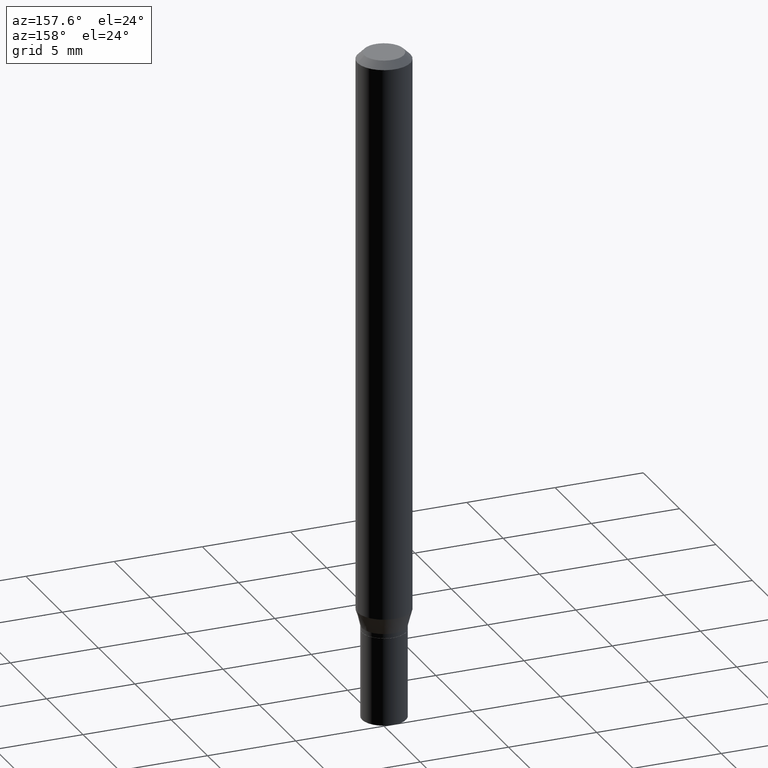
[diagram: clean part render]
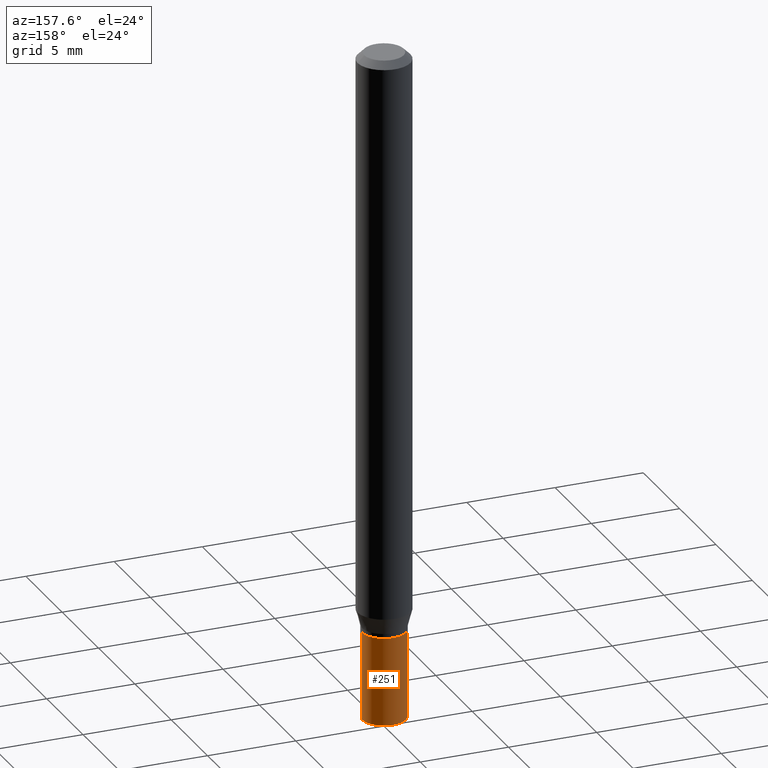
[diagram: same view with one face highlighted and labeled with its STEP entity id]
A machine part, auxiliary view. The second image highlights one B-rep face of the part: STEP entity #251.
In plain terms, the highlighted cylindrical surface (edge-blend (fillet) strip) has radius 1.2497 mm, axis along (-0, 0, 1).
Its self-contained STEP definition (entity closure, byte-faithful):
#10 = DIRECTION ( 'NONE',  ( -2.445468806185136597E-29, 3.491481338843145583E-15, 1.000000000000000000 ) ) ;
#14 = LINE ( 'NONE', #454, #310 ) ;
#17 = DIRECTION ( 'NONE',  ( 1.000000000000000000, -6.982962677686266711E-15, 4.876176775795935793E-29 ) ) ;
#19 = EDGE_CURVE ( 'NONE', #126, #286, #368, .T. ) ;
#25 = AXIS2_PLACEMENT_3D ( 'NONE', #73, #302, #17 ) ;
#32 = ORIENTED_EDGE ( 'NONE', *, *, #40, .T. ) ;
#35 = EDGE_LOOP ( 'NONE', ( #179, #32, #380, #425 ) ) ;
#40 = EDGE_CURVE ( 'NONE', #169, #286, #72, .T. ) ;
#65 = VERTEX_POINT ( 'NONE', #189 ) ;
#69 = AXIS2_PLACEMENT_3D ( 'NONE', #192, #10, #155 ) ;
#72 = LINE ( 'NONE', #373, #429 ) ;
#73 = CARTESIAN_POINT ( 'NONE',  ( 0.000000000000000000, 0.000000000000000000, 0.000000000000000000 ) ) ;
#91 = CARTESIAN_POINT ( 'NONE',  ( 3.186690401339851824E-29, -4.549749332646504039E-15, -1.303100000000000147 ) ) ;
#113 = CARTESIAN_POINT ( 'NONE',  ( 0.04920000000000000068, -4.893311096388667774E-15, -1.303100000000000147 ) ) ;
#114 = FACE_OUTER_BOUND ( 'NONE', #35, .T. ) ;
#126 = VERTEX_POINT ( 'NONE', #113 ) ;
#152 = CYLINDRICAL_SURFACE ( 'NONE', #25, 0.04920000000000000068 ) ;
#155 = DIRECTION ( 'NONE',  ( 1.000000000000000000, -6.982962677686261977E-15, 0.000000000000000000 ) ) ;
#169 = VERTEX_POINT ( 'NONE', #213 ) ;
#179 = ORIENTED_EDGE ( 'NONE', *, *, #238, .T. ) ;
#189 = CARTESIAN_POINT ( 'NONE',  ( 0.04920000000000000068, -5.580783772006882701E-15, -1.500000000000000222 ) ) ;
#192 = CARTESIAN_POINT ( 'NONE',  ( 3.668203209277704895E-29, -5.237222008264718177E-15, -1.500000000000000222 ) ) ;
#201 = CIRCLE ( 'NONE', #69, 0.04920000000000000068 ) ;
#213 = CARTESIAN_POINT ( 'NONE',  ( -0.04920000000000000068, -4.543898644461642453E-15, -1.500000000000000222 ) ) ;
#238 = EDGE_CURVE ( 'NONE', #65, #169, #201, .T. ) ;
#242 = DIRECTION ( 'NONE',  ( -2.445468806185136597E-29, 3.491481338843145583E-15, 1.000000000000000000 ) ) ;
#251 = ADVANCED_FACE ( 'NONE', ( #114 ), #152, .T. ) ;
#286 = VERTEX_POINT ( 'NONE', #338 ) ;
#302 = DIRECTION ( 'NONE',  ( -2.445468806185136597E-29, 3.491481338843145583E-15, 1.000000000000000000 ) ) ;
#310 = VECTOR ( 'NONE', #381, 39.37007874015748143 ) ;
#314 = EDGE_CURVE ( 'NONE', #65, #126, #14, .T. ) ;
#316 = DIRECTION ( 'NONE',  ( 1.000000000000000000, -6.982962677686261977E-15, 0.000000000000000000 ) ) ;
#338 = CARTESIAN_POINT ( 'NONE',  ( -0.04920000000000000068, -4.543898644461642453E-15, -1.303100000000000147 ) ) ;
#368 = CIRCLE ( 'NONE', #418, 0.04920000000000000068 ) ;
#371 = DIRECTION ( 'NONE',  ( -2.445468806185136877E-29, 3.491481338843145188E-15, 1.000000000000000000 ) ) ;
#373 = CARTESIAN_POINT ( 'NONE',  ( -0.04920000000000000068, 3.495870259939692963E-16, -2.420116064405413767E-30 ) ) ;
#380 = ORIENTED_EDGE ( 'NONE', *, *, #19, .F. ) ;
#381 = DIRECTION ( 'NONE',  ( -2.445468806185136877E-29, 3.491481338843145188E-15, 1.000000000000000000 ) ) ;
#418 = AXIS2_PLACEMENT_3D ( 'NONE', #91, #242, #316 ) ;
#425 = ORIENTED_EDGE ( 'NONE', *, *, #314, .F. ) ;
#429 = VECTOR ( 'NONE', #371, 39.37007874015748143 ) ;
#454 = CARTESIAN_POINT ( 'NONE',  ( 0.04920000000000000068, -3.435617637421643269E-16, 2.399078973691600472E-30 ) ) ;